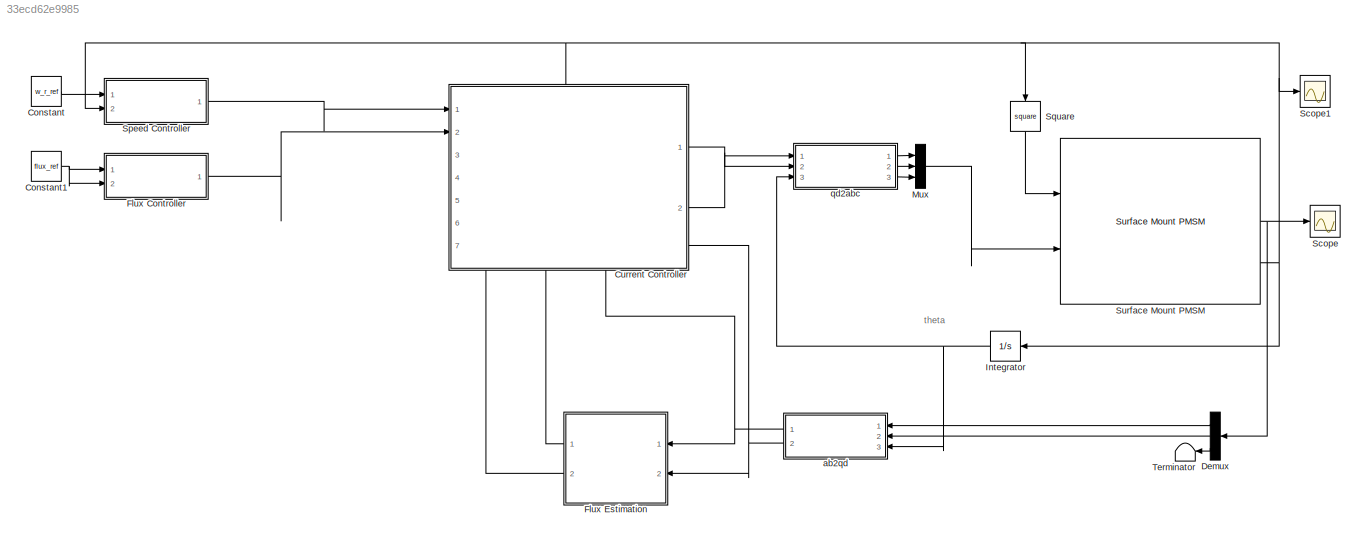
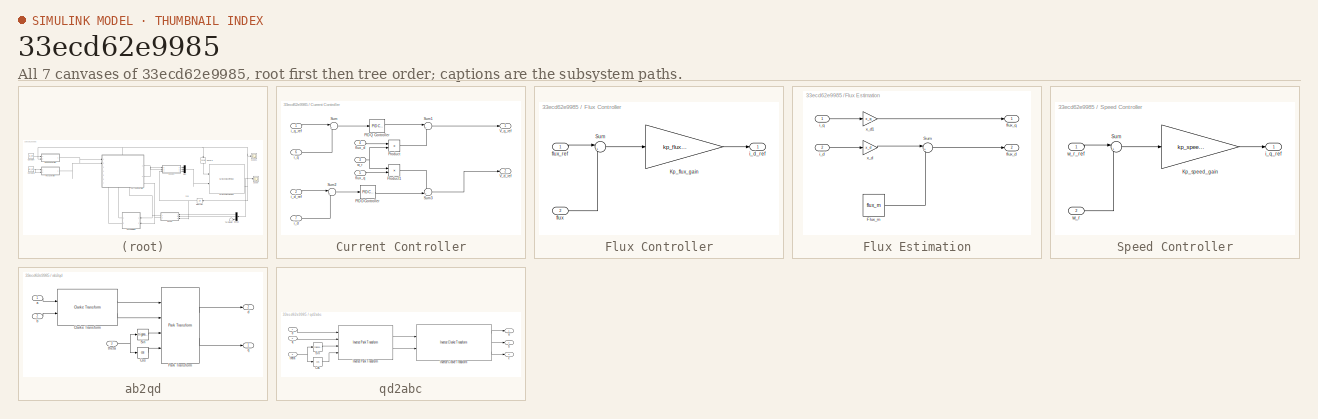
[diagram: thumbnail index - all 7 canvases of the model, root first then tree order]
MODEL slx_33ecd62e9985
KIND model
CONFIG AbsTol = auto
CONFIG EnableMultiTasking = off
CONFIG FixedStep = auto
CONFIG MaxStep = auto
CONFIG MinStep = auto
CONFIG RelTol = 1e-3
CONFIG SampleTimeConstraint = Unconstrained
CONFIG Solver = VariableStepAuto
CONFIG SolverName = VariableStepAuto
CONFIG StartTime = 0.0
CONFIG StopTime = 10.0
BLOCK [Constant] Constant
  Value = w_r_ref
BLOCK [Constant] Constant1
  Value = flux_ref
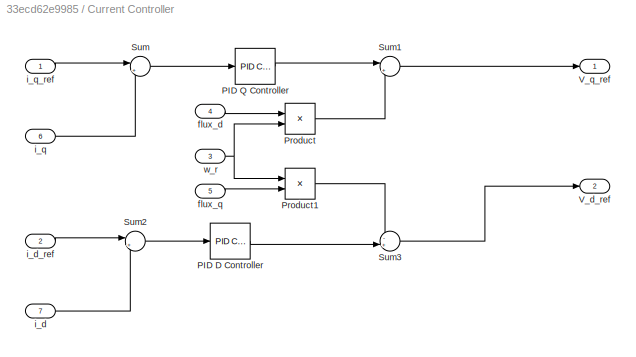
BLOCK [SubSystem] Current Controller
  PortSchema = {"entries":[{"content":{"sides":[{"content":{"connectorIds":["In1","In2"]},"type":"ConnectorPlacement.EquallySpacedRectSide","uuid":"d2db9237-7a25-4972-ad11-fca93cfe0796"},{"content":{"connectorIds":["Out1","Out2"],"side":"RIGHT"},"type":"ConnectorPlacement.EquallySpacedRectSide","uuid":"de3236f9-3478-4b60-a0f6-95c46eb50464"},{"content":{"connectorIds":["In3"],"side":"TOP"},"type":"ConnectorPlacem...<+427ch>
  Ports = [7, 2]
  RequestExecContextInheritance = off
BLOCK [Reference] Current Controller/PID D Controller  REF=simulink/Continuous/PID Controller
  Ports = [1, 1]
  SourceBlock = simulink/Continuous/PID Controller
  SourceProductBaseCode = SL
  SourceType = PID 1dof
BLOCK [Reference] Current Controller/PID Q Controller  REF=simulink/Continuous/PID Controller
  Ports = [1, 1]
  SourceBlock = simulink/Continuous/PID Controller
  SourceProductBaseCode = SL
  SourceType = PID 1dof
BLOCK [Product] Current Controller/Product
  Ports = [2, 1]
BLOCK [Product] Current Controller/Product1
  Ports = [2, 1]
BLOCK [Sum] Current Controller/Sum
  Inputs = |+-
  Ports = [2, 1]
BLOCK [Sum] Current Controller/Sum1
  Inputs = |+-
  Ports = [2, 1]
BLOCK [Sum] Current Controller/Sum2
  Inputs = |+-
  Ports = [2, 1]
BLOCK [Sum] Current Controller/Sum3
  Inputs = -+|
  Ports = [2, 1]
BLOCK [Outport] Current Controller/V_d_ref
  Port = 2
BLOCK [Outport] Current Controller/V_q_ref
BLOCK [Inport] Current Controller/flux_d
  Port = 4
BLOCK [Inport] Current Controller/flux_q
  Port = 5
BLOCK [Inport] Current Controller/i_d
  Port = 7
BLOCK [Inport] Current Controller/i_d_ref
  Port = 2
BLOCK [Inport] Current Controller/i_q
  Port = 6
BLOCK [Inport] Current Controller/i_q_ref
BLOCK [Inport] Current Controller/w_r
  Port = 3
BLOCK [Demux] Demux
  Outputs = 3
  Ports = [1, 3]
BLOCK [SubSystem] Flux Controller
  Ports = [2, 1]
  RequestExecContextInheritance = off
BLOCK [Gain] Flux Controller/Kp_flux_gain
  Gain = kp_flux_gain
BLOCK [Sum] Flux Controller/Sum
  Inputs = |+-
  Ports = [2, 1]
BLOCK [Inport] Flux Controller/flux
  Port = 2
BLOCK [Inport] Flux Controller/flux_ref
BLOCK [Outport] Flux Controller/i_d_ref
BLOCK [SubSystem] Flux Estimation
  Ports = [2, 2]
  RequestExecContextInheritance = off
BLOCK [Constant] Flux Estimation/Flux_m
  Value = flux_m
BLOCK [Sum] Flux Estimation/Sum
  Inputs = |++
  Ports = [2, 1]
BLOCK [Outport] Flux Estimation/flux_d
  Port = 2
BLOCK [Outport] Flux Estimation/flux_q
BLOCK [Inport] Flux Estimation/i_d
  Port = 2
BLOCK [Inport] Flux Estimation/i_q
BLOCK [Gain] Flux Estimation/x_d
  Gain = x_d
BLOCK [Gain] Flux Estimation/x_d1
  Gain = x_q
BLOCK [Integrator] Integrator
  Ports = [1, 1]
BLOCK [Mux] Mux
  DisplayOption = bar
  Inputs = 3
  Ports = [3, 1]
BLOCK [Scope] Scope
  Floating = off
  NumInputPorts = 1
  Ports = [1]
  ScopeSpecificationString = Simulink.scopes.TimeScopeBlockCfg('CurrentConfiguration', extmgr.ConfigurationSet(extmgr.Configuration('Core','General UI',true),extmgr.Configuration('Core','Source UI',true),extmgr.Configuration('Sources','WiredSimulink',true),extmgr.Configuration('Visuals','Time Domain',true,'SerializedDisplays',{struct('MinYLimReal','-17677669.52207','MaxYLimReal','17677669.47957','YLabelReal','','MinYLimMag','...<+1446ch>
BLOCK [Scope] Scope1
  Floating = off
  NumInputPorts = 1
  Ports = [1]
  ScopeSpecificationString = Simulink.scopes.TimeScopeBlockCfg('CurrentConfiguration', extmgr.ConfigurationSet(extmgr.Configuration('Core','General UI',true),extmgr.Configuration('Core','Source UI',true),extmgr.Configuration('Sources','WiredSimulink',true,'DataLoggingVariableName','ScopeData1'),extmgr.Configuration('Visuals','Time Domain',true),extmgr.Configuration('Tools','Plot Navigation',true),extmgr.Configuration('Tools',...<+40ch>
BLOCK [SubSystem] Speed Controller
  Ports = [2, 1]
  RequestExecContextInheritance = off
BLOCK [Gain] Speed Controller/Kp_speed_gain
  Gain = kp_speed_gain
BLOCK [Sum] Speed Controller/Sum
  Inputs = |+-
  Ports = [2, 1]
BLOCK [Outport] Speed Controller/i_q_ref
BLOCK [Inport] Speed Controller/w_r
  Port = 2
BLOCK [Inport] Speed Controller/w_r_ref
BLOCK [Math] Square
  NameLocation = left
  Operator = square
  Ports = [1, 1]
BLOCK [Reference] Surface Mount PMSM  REF=autolibpmsmexterior/Surface Mount PMSM
  Ports = [2, 3]
  SourceBlock = autolibpmsmexterior/Surface Mount PMSM
  SourceProductBaseCode = PW,MT,VE,VP
  SourceType = Surface Mount PMSM
BLOCK [Terminator] Terminator
BLOCK [SubSystem] ab2qd
  Ports = [3, 2]
  RequestExecContextInheritance = off
BLOCK [Reference] ab2qd/Clarke Transform  REF=mcbcontrolslib/Clarke Transform
  Ports = [2, 2]
  SourceBlock = mcbcontrolslib/Clarke Transform
  SourceProductBaseCode = MT
  SourceType = Clarke Transform
BLOCK [Trigonometry] ab2qd/Cos
  Operator = cos
  Ports = [1, 1]
BLOCK [Reference] ab2qd/Park Transform  REF=mcbcontrolslib/Park Transform
  Ports = [4, 2]
  SourceBlock = mcbcontrolslib/Park Transform
  SourceProductBaseCode = MT
  SourceType = Park Transform
BLOCK [Trigonometry] ab2qd/Sin
  Ports = [1, 1]
BLOCK [Inport] ab2qd/a
BLOCK [Inport] ab2qd/b
  Port = 2
BLOCK [Outport] ab2qd/d
  Port = 2
BLOCK [Outport] ab2qd/q
BLOCK [Inport] ab2qd/theta
  Port = 3
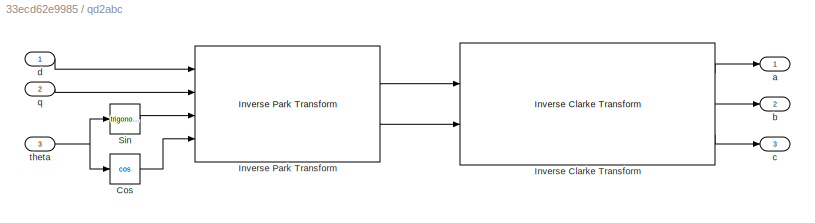
BLOCK [SubSystem] qd2abc
  Ports = [3, 3]
  RequestExecContextInheritance = off
BLOCK [Trigonometry] qd2abc/Cos
  Operator = cos
  Ports = [1, 1]
BLOCK [Reference] qd2abc/Inverse Clarke Transform  REF=mcbcontrolslib/Inverse Clarke Transform
  Ports = [2, 3]
  SourceBlock = mcbcontrolslib/Inverse Clarke Transform
  SourceProductBaseCode = MT
  SourceType = Inverse Clarke Transform
BLOCK [Reference] qd2abc/Inverse Park Transform  REF=mcbcontrolslib/Inverse Park Transform
  Ports = [4, 2]
  SourceBlock = mcbcontrolslib/Inverse Park Transform
  SourceProductBaseCode = MT
  SourceType = Inverse Park Transform
BLOCK [Trigonometry] qd2abc/Sin
  Ports = [1, 1]
BLOCK [Outport] qd2abc/a
BLOCK [Outport] qd2abc/b
  Port = 2
BLOCK [Outport] qd2abc/c
  Port = 3
BLOCK [Inport] qd2abc/d
BLOCK [Inport] qd2abc/q
  Port = 2
BLOCK [Inport] qd2abc/theta
  Port = 3
ANNOTATION (root): theta
NET Constant1:1 -> Flux Controller:1, Flux Controller:2
LINE Constant:1 -> Speed Controller:1
LINE Current Controller/PID D Controller:1 -> Current Controller/Sum3:2
LINE Current Controller/PID Q Controller:1 -> Current Controller/Sum1:1
LINE Current Controller/Product1:1 -> Current Controller/Sum3:1
LINE Current Controller/Product:1 -> Current Controller/Sum1:2
LINE Current Controller/Sum1:1 -> Current Controller/V_q_ref:1
LINE Current Controller/Sum2:1 -> Current Controller/PID D Controller:1
LINE Current Controller/Sum3:1 -> Current Controller/V_d_ref:1
LINE Current Controller/Sum:1 -> Current Controller/PID Q Controller:1
LINE Current Controller/flux_d:1 -> Current Controller/Product:1
LINE Current Controller/flux_q:1 -> Current Controller/Product1:2
LINE Current Controller/i_d:1 -> Current Controller/Sum2:2
LINE Current Controller/i_d_ref:1 -> Current Controller/Sum2:1
LINE Current Controller/i_q:1 -> Current Controller/Sum:2
LINE Current Controller/i_q_ref:1 -> Current Controller/Sum:1
NET Current Controller/w_r:1 -> Current Controller/Product1:1, Current Controller/Product:2
LINE Current Controller:1 -> qd2abc:1
LINE Current Controller:2 -> qd2abc:2
LINE Demux:1 -> ab2qd:1
LINE Demux:2 -> ab2qd:2
LINE Demux:3 -> Terminator:1
LINE Flux Controller/Kp_flux_gain:1 -> Flux Controller/i_d_ref:1
LINE Flux Controller/Sum:1 -> Flux Controller/Kp_flux_gain:1
LINE Flux Controller/flux:1 -> Flux Controller/Sum:2
LINE Flux Controller/flux_ref:1 -> Flux Controller/Sum:1
LINE Flux Controller:1 -> Current Controller:2
LINE Flux Estimation/Flux_m:1 -> Flux Estimation/Sum:2
LINE Flux Estimation/Sum:1 -> Flux Estimation/flux_d:1
LINE Flux Estimation/i_d:1 -> Flux Estimation/x_d:1
LINE Flux Estimation/i_q:1 -> Flux Estimation/x_d1:1
LINE Flux Estimation/x_d1:1 -> Flux Estimation/flux_q:1
LINE Flux Estimation/x_d:1 -> Flux Estimation/Sum:1
LINE Flux Estimation:1 -> Current Controller:5
LINE Flux Estimation:2 -> Current Controller:4
NET Integrator:1 -> ab2qd:3, qd2abc:3
LINE Mux:1 -> Surface Mount PMSM:2
LINE Speed Controller/Kp_speed_gain:1 -> Speed Controller/i_q_ref:1
LINE Speed Controller/Sum:1 -> Speed Controller/Kp_speed_gain:1
LINE Speed Controller/w_r:1 -> Speed Controller/Sum:2
LINE Speed Controller/w_r_ref:1 -> Speed Controller/Sum:1
LINE Speed Controller:1 -> Current Controller:1
LINE Square:1 -> Surface Mount PMSM:1
NET Surface Mount PMSM:2 -> Demux:1, Scope:1
NET Surface Mount PMSM:3 -> Current Controller:3, Integrator:1, Scope1:1, Speed Controller:2, Square:1
LINE ab2qd/Clarke Transform:1 -> ab2qd/Park Transform:1
LINE ab2qd/Clarke Transform:2 -> ab2qd/Park Transform:2
LINE ab2qd/Cos:1 -> ab2qd/Park Transform:4
LINE ab2qd/Park Transform:1 -> ab2qd/d:1
LINE ab2qd/Park Transform:2 -> ab2qd/q:1
LINE ab2qd/Sin:1 -> ab2qd/Park Transform:3
LINE ab2qd/a:1 -> ab2qd/Clarke Transform:1
LINE ab2qd/b:1 -> ab2qd/Clarke Transform:2
NET ab2qd/theta:1 -> ab2qd/Cos:1, ab2qd/Sin:1
NET ab2qd:1 -> Current Controller:6, Flux Estimation:1
NET ab2qd:2 -> Current Controller:7, Flux Estimation:2
LINE qd2abc/Cos:1 -> qd2abc/Inverse Park Transform:4
LINE qd2abc/Inverse Clarke Transform:1 -> qd2abc/a:1
LINE qd2abc/Inverse Clarke Transform:2 -> qd2abc/b:1
LINE qd2abc/Inverse Clarke Transform:3 -> qd2abc/c:1
LINE qd2abc/Inverse Park Transform:1 -> qd2abc/Inverse Clarke Transform:1
LINE qd2abc/Inverse Park Transform:2 -> qd2abc/Inverse Clarke Transform:2
LINE qd2abc/Sin:1 -> qd2abc/Inverse Park Transform:3
LINE qd2abc/d:1 -> qd2abc/Inverse Park Transform:1
LINE qd2abc/q:1 -> qd2abc/Inverse Park Transform:2
NET qd2abc/theta:1 -> qd2abc/Cos:1, qd2abc/Sin:1
LINE qd2abc:1 -> Mux:1
LINE qd2abc:2 -> Mux:2
LINE qd2abc:3 -> Mux:3
note: NET lines group one-source signal fan-out (src -> all destinations, sorted); 1:1 wires keep LINE
